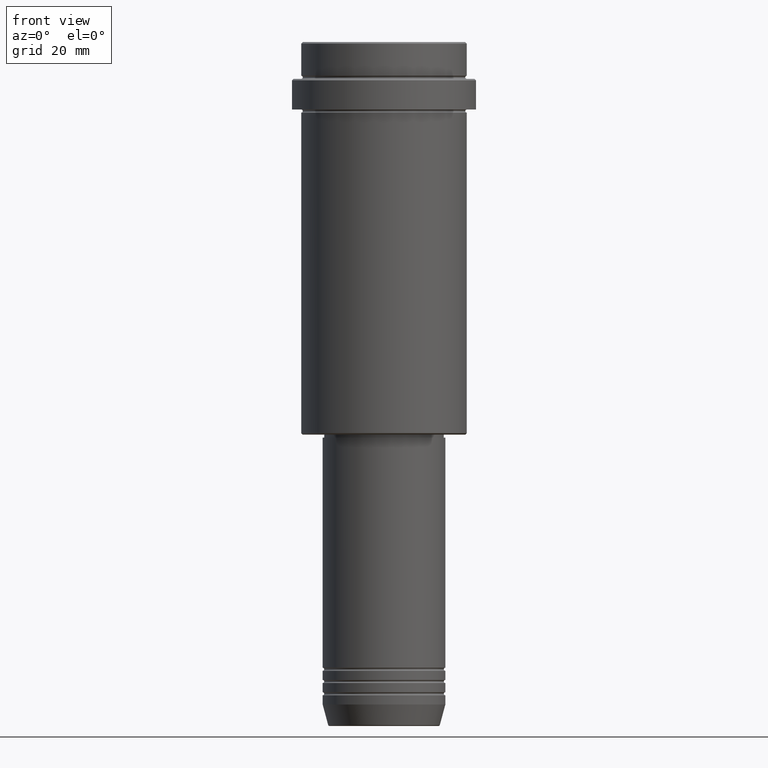
[diagram: clean part render]
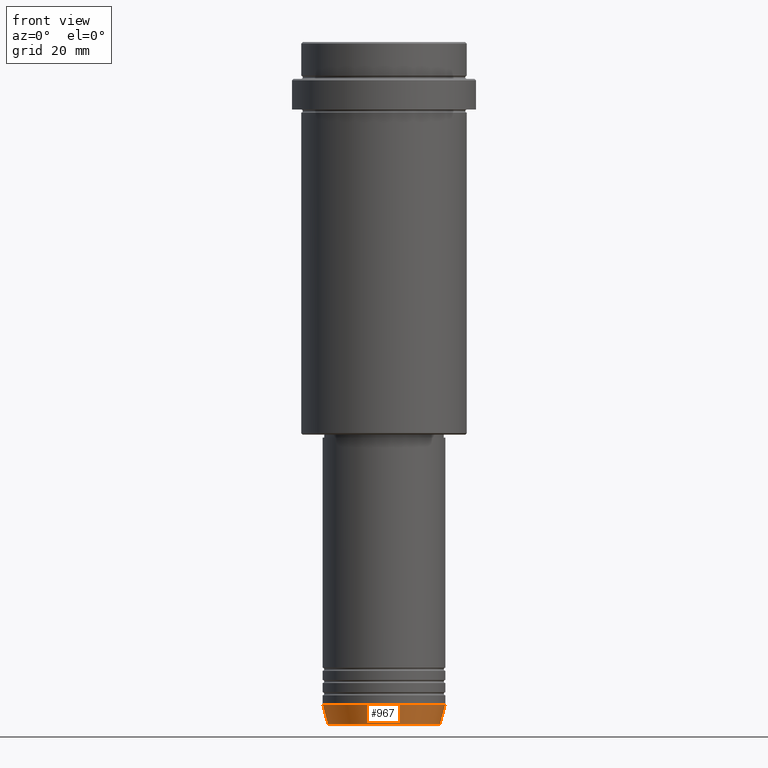
[diagram: same view with one face highlighted and labeled with its STEP entity id]
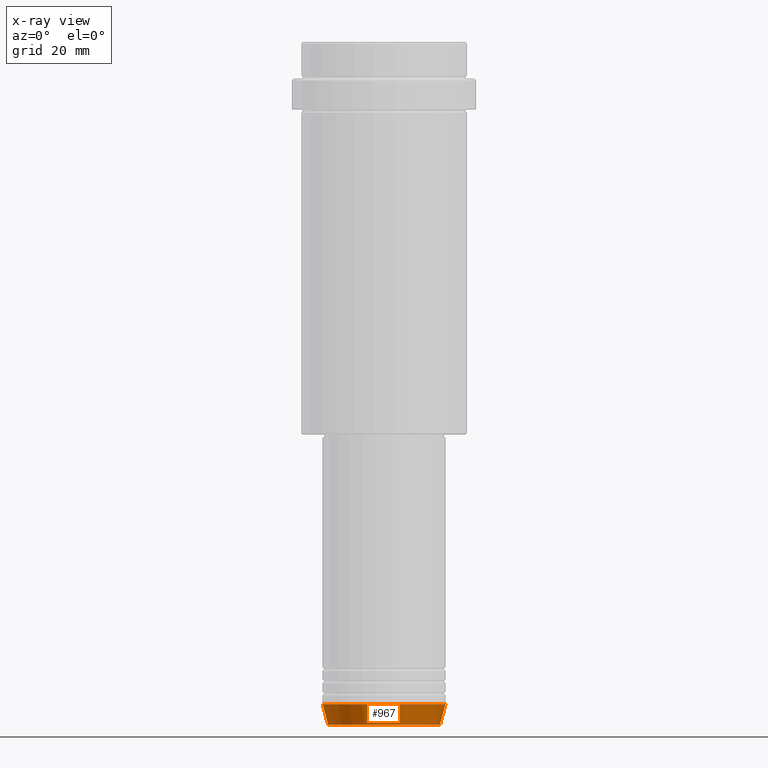
[diagram: x-ray of the same camera — body ghosted, the highlighted face saturated]
A machine part, front view. The second image highlights one B-rep face of the part: STEP entity #967.
The next image is the same camera in x-ray: the body ghosted, the highlighted face saturated — about 0% of this face is hidden behind the body in this view.
In plain terms, the highlighted conical surface has half-angle 15 deg.
Its self-contained STEP definition (entity closure, byte-faithful):
#36 = CARTESIAN_POINT ( 'NONE',  ( -18.22365507213718772, 2.340523841790264718E-15, -222.6294095225512706 ) ) ;
#51 = EDGE_CURVE ( 'NONE', #688, #416, #928, .T. ) ;
#136 = CARTESIAN_POINT ( 'NONE',  ( 18.22365507213718772, 0.000000000000000000, -222.6294095225512706 ) ) ;
#152 = DIRECTION ( 'NONE',  ( 1.000000000000000000, 0.000000000000000000, 0.000000000000000000 ) ) ;
#153 = LINE ( 'NONE', #605, #424 ) ;
#185 = EDGE_LOOP ( 'NONE', ( #321, #787, #795, #1194 ) ) ;
#291 = LINE ( 'NONE', #968, #718 ) ;
#301 = CARTESIAN_POINT ( 'NONE',  ( 0.000000000000000000, 0.000000000000000000, -216.0000000000000284 ) ) ;
#321 = ORIENTED_EDGE ( 'NONE', *, *, #556, .F. ) ;
#405 = FACE_OUTER_BOUND ( 'NONE', #185, .T. ) ;
#410 = DIRECTION ( 'NONE',  ( -0.000000000000000000, -0.000000000000000000, 1.000000000000000000 ) ) ;
#416 = VERTEX_POINT ( 'NONE', #1230 ) ;
#424 = VECTOR ( 'NONE', #823, 1000.000000000000000 ) ;
#459 = VERTEX_POINT ( 'NONE', #36 ) ;
#520 = CONICAL_SURFACE ( 'NONE', #614, 20.00000000000000000, 0.2617993877991500740 ) ;
#556 = EDGE_CURVE ( 'NONE', #459, #688, #291, .T. ) ;
#594 = DIRECTION ( 'NONE',  ( -0.000000000000000000, -0.000000000000000000, 1.000000000000000000 ) ) ;
#605 = CARTESIAN_POINT ( 'NONE',  ( 20.00000000000000000, 0.000000000000000000, -216.0000000000000284 ) ) ;
#614 = AXIS2_PLACEMENT_3D ( 'NONE', #301, #410, #840 ) ;
#615 = CARTESIAN_POINT ( 'NONE',  ( 0.000000000000000000, 0.000000000000000000, -216.0000000000000284 ) ) ;
#688 = VERTEX_POINT ( 'NONE', #1379 ) ;
#718 = VECTOR ( 'NONE', #1077, 1000.000000000000000 ) ;
#759 = CARTESIAN_POINT ( 'NONE',  ( 0.000000000000000000, 0.000000000000000000, -222.6294095225512706 ) ) ;
#769 = AXIS2_PLACEMENT_3D ( 'NONE', #759, #972, #1311 ) ;
#787 = ORIENTED_EDGE ( 'NONE', *, *, #1141, .T. ) ;
#794 = CIRCLE ( 'NONE', #769, 18.22365507213718772 ) ;
#795 = ORIENTED_EDGE ( 'NONE', *, *, #1365, .T. ) ;
#823 = DIRECTION ( 'NONE',  ( 0.2588190451025213501, 0.000000000000000000, 0.9659258262890680902 ) ) ;
#840 = DIRECTION ( 'NONE',  ( 1.000000000000000000, 0.000000000000000000, 0.000000000000000000 ) ) ;
#928 = CIRCLE ( 'NONE', #1258, 20.00000000000000000 ) ;
#967 = ADVANCED_FACE ( 'NONE', ( #405 ), #520, .T. ) ;
#968 = CARTESIAN_POINT ( 'NONE',  ( -20.00000000000000000, 2.449293598294706513E-15, -216.0000000000000284 ) ) ;
#972 = DIRECTION ( 'NONE',  ( -0.000000000000000000, -0.000000000000000000, 1.000000000000000000 ) ) ;
#993 = VERTEX_POINT ( 'NONE', #136 ) ;
#1077 = DIRECTION ( 'NONE',  ( -0.2588190451025213501, 3.169619151431772337E-17, 0.9659258262890680902 ) ) ;
#1141 = EDGE_CURVE ( 'NONE', #459, #993, #794, .T. ) ;
#1194 = ORIENTED_EDGE ( 'NONE', *, *, #51, .F. ) ;
#1230 = CARTESIAN_POINT ( 'NONE',  ( 20.00000000000000000, 0.000000000000000000, -216.0000000000000284 ) ) ;
#1258 = AXIS2_PLACEMENT_3D ( 'NONE', #615, #594, #152 ) ;
#1311 = DIRECTION ( 'NONE',  ( 1.000000000000000000, 0.000000000000000000, 0.000000000000000000 ) ) ;
#1365 = EDGE_CURVE ( 'NONE', #993, #416, #153, .T. ) ;
#1379 = CARTESIAN_POINT ( 'NONE',  ( -20.00000000000000000, 2.449293598294706513E-15, -216.0000000000000284 ) ) ;